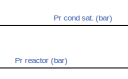
[diagram: root canvas - part 1/6, top center region]
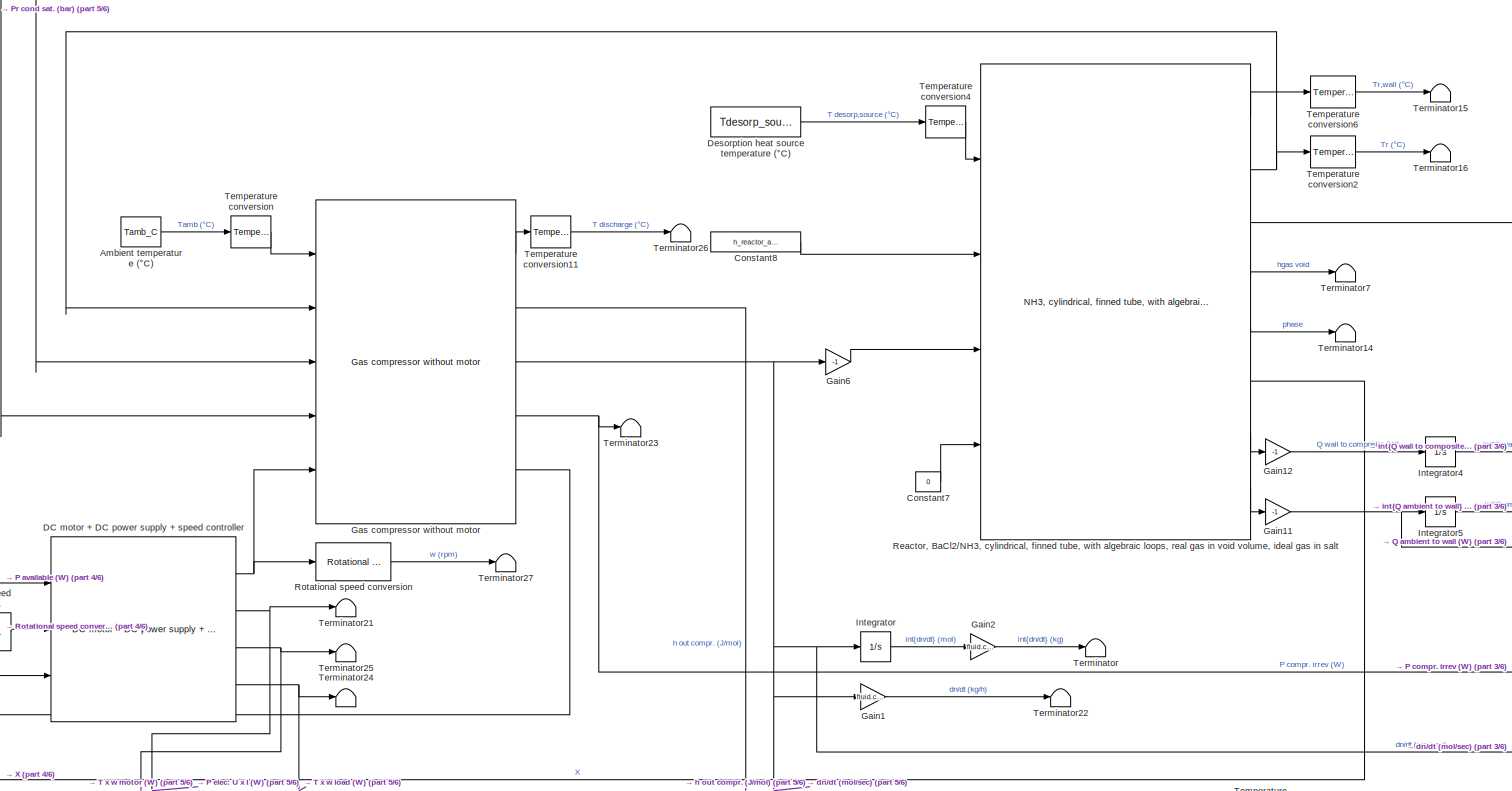
[diagram: root canvas - part 2/6, top center region]
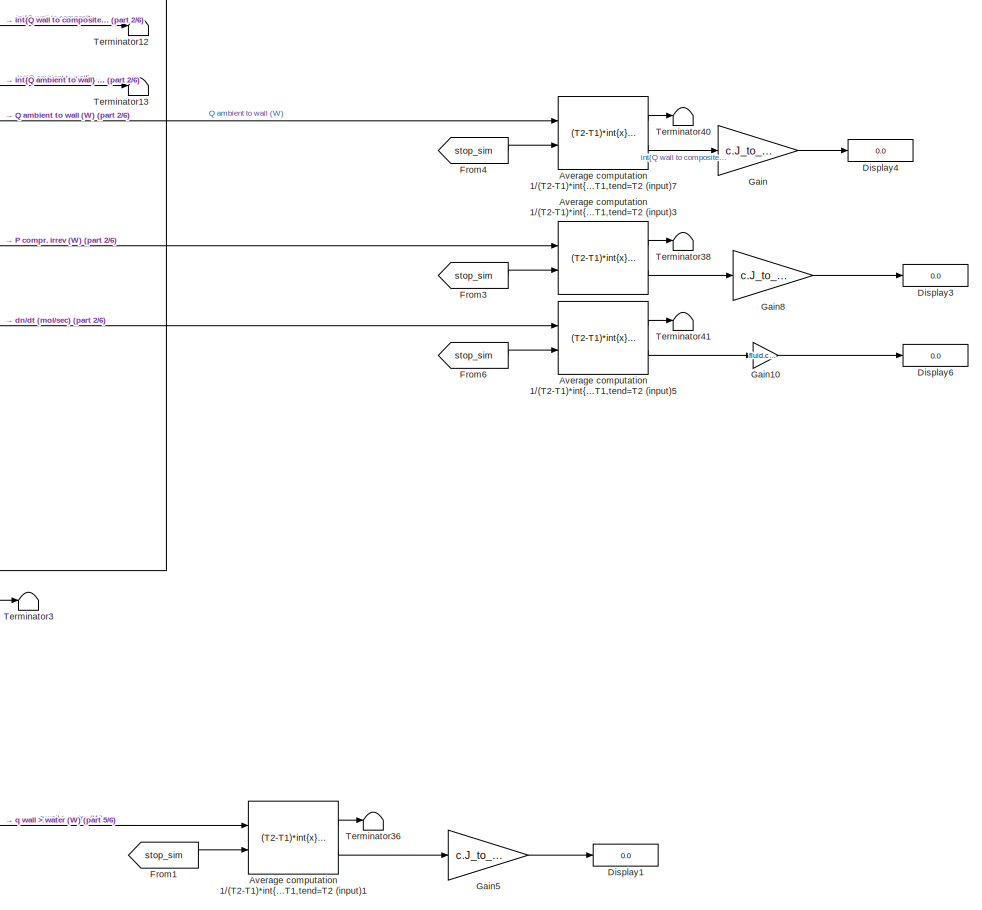
[diagram: root canvas - part 3/6, middle right region]
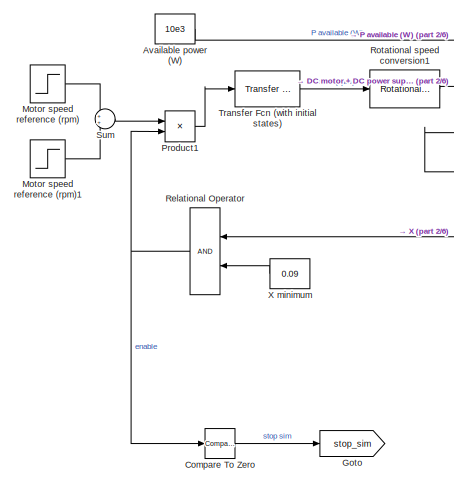
[diagram: root canvas - part 4/6, middle left region]
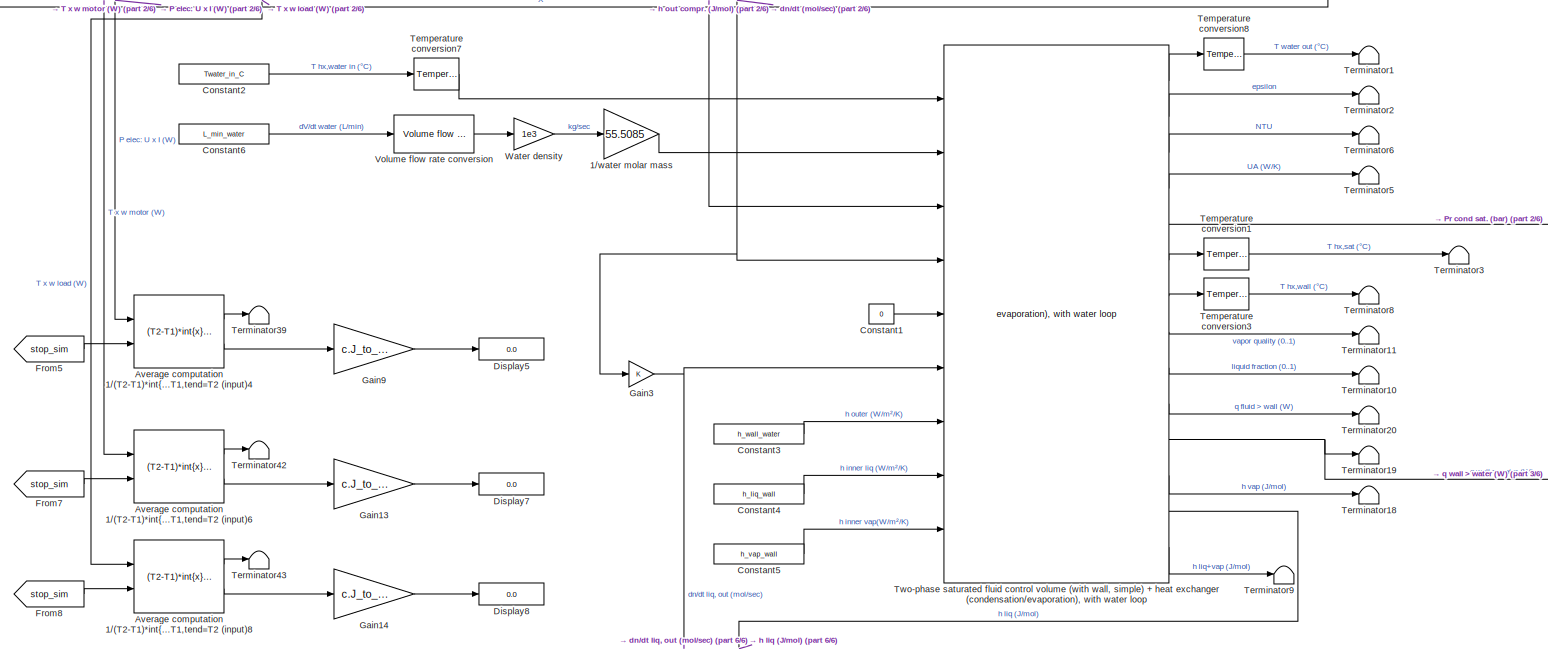
[diagram: root canvas - part 5/6, central region]
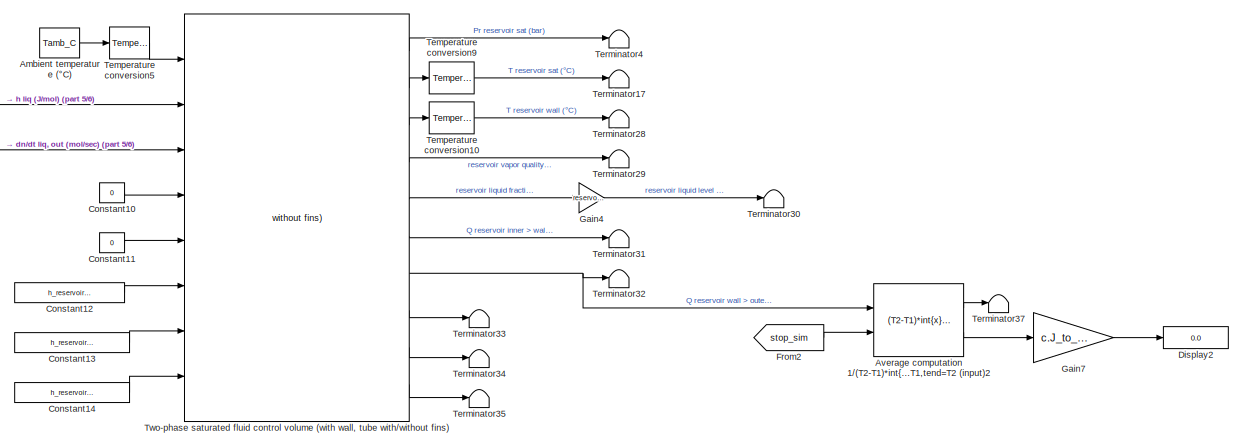
[diagram: root canvas - part 6/6, bottom center region]
MODEL slx_c5d3641f664c
KIND model
CONFIG AbsTol = auto
CONFIG EnableMultiTasking = off
CONFIG FixedStep = auto
CONFIG MaxStep = 0.1
CONFIG MinStep = auto
CONFIG RelTol = 5e-6
CONFIG SampleTimeConstraint = Unconstrained
CONFIG Solver = ode23tb
CONFIG SolverName = ode23tb
CONFIG StartTime = 0.0
CONFIG StopTime = tEndSimul
BLOCK [Gain] 1//water molar mass
  Gain = 55.5085
  OutDataTypeStr = Inherit: Inherit via internal rule
  ParamDataTypeStr = Inherit: Inherit via internal rule
  SaturateOnIntegerOverflow = off
BLOCK [Constant] Ambient temperature (°C)
  Value = Tamb_C
BLOCK [Constant] Ambient temperature (°C) 
  Value = Tamb_C
BLOCK [Constant] Available power (W)
  Value = 10e3
BLOCK [Reference] Average computation 1//(T2-T1)*int{x}|t0=T1,tend=T2 (input)1  REF=thermochemical/Utils/Average computation  (lib defined in slx_f9e0643dc704)
1//(T2-T1)*int{x}|t0=T1,tend=T2 (input)
  Ports = [2, 2]
  SourceBlock = thermochemical/Utils/Average computation\n1//(T2-T1)*int{x}|t0=T1,tend=T2 (input)
  SourceProductName = @ Thermochemical
BLOCK [Reference] Average computation 1//(T2-T1)*int{x}|t0=T1,tend=T2 (input)2  REF=thermochemical/Utils/Average computation  (lib defined in slx_f9e0643dc704)
1//(T2-T1)*int{x}|t0=T1,tend=T2 (input)
  Ports = [2, 2]
  SourceBlock = thermochemical/Utils/Average computation\n1//(T2-T1)*int{x}|t0=T1,tend=T2 (input)
  SourceProductName = @ Thermochemical
BLOCK [Reference] Average computation 1//(T2-T1)*int{x}|t0=T1,tend=T2 (input)3  REF=thermochemical/Utils/Average computation  (lib defined in slx_f9e0643dc704)
1//(T2-T1)*int{x}|t0=T1,tend=T2 (input)
  Ports = [2, 2]
  SourceBlock = thermochemical/Utils/Average computation\n1//(T2-T1)*int{x}|t0=T1,tend=T2 (input)
  SourceProductName = @ Thermochemical
BLOCK [Reference] Average computation 1//(T2-T1)*int{x}|t0=T1,tend=T2 (input)4  REF=thermochemical/Utils/Average computation  (lib defined in slx_f9e0643dc704)
1//(T2-T1)*int{x}|t0=T1,tend=T2 (input)
  Ports = [2, 2]
  SourceBlock = thermochemical/Utils/Average computation\n1//(T2-T1)*int{x}|t0=T1,tend=T2 (input)
  SourceProductName = @ Thermochemical
BLOCK [Reference] Average computation 1//(T2-T1)*int{x}|t0=T1,tend=T2 (input)5  REF=thermochemical/Utils/Average computation  (lib defined in slx_f9e0643dc704)
1//(T2-T1)*int{x}|t0=T1,tend=T2 (input)
  Ports = [2, 2]
  SourceBlock = thermochemical/Utils/Average computation\n1//(T2-T1)*int{x}|t0=T1,tend=T2 (input)
  SourceProductName = @ Thermochemical
BLOCK [Reference] Average computation 1//(T2-T1)*int{x}|t0=T1,tend=T2 (input)6  REF=thermochemical/Utils/Average computation  (lib defined in slx_f9e0643dc704)
1//(T2-T1)*int{x}|t0=T1,tend=T2 (input)
  Ports = [2, 2]
  SourceBlock = thermochemical/Utils/Average computation\n1//(T2-T1)*int{x}|t0=T1,tend=T2 (input)
  SourceProductName = @ Thermochemical
BLOCK [Reference] Average computation 1//(T2-T1)*int{x}|t0=T1,tend=T2 (input)7  REF=thermochemical/Utils/Average computation  (lib defined in slx_f9e0643dc704)
1//(T2-T1)*int{x}|t0=T1,tend=T2 (input)
  Ports = [2, 2]
  SourceBlock = thermochemical/Utils/Average computation\n1//(T2-T1)*int{x}|t0=T1,tend=T2 (input)
  SourceProductName = @ Thermochemical
BLOCK [Reference] Average computation 1//(T2-T1)*int{x}|t0=T1,tend=T2 (input)8  REF=thermochemical/Utils/Average computation  (lib defined in slx_f9e0643dc704)
1//(T2-T1)*int{x}|t0=T1,tend=T2 (input)
  Ports = [2, 2]
  SourceBlock = thermochemical/Utils/Average computation\n1//(T2-T1)*int{x}|t0=T1,tend=T2 (input)
  SourceProductName = @ Thermochemical
BLOCK [Reference] Compare To Zero  REF=simulink/Logic and Bit
Operations/Compare
To Zero
  Ports = [1, 1]
  SourceBlock = simulink/Logic and Bit\nOperations/Compare\nTo Zero
  SourceProductBaseCode = SL
  SourceProductName = Simulink
  SourceType = Compare To Zero
BLOCK [Constant] Constant1
  Value = 0
BLOCK [Constant] Constant10
  Value = 0
BLOCK [Constant] Constant11
  Value = 0
BLOCK [Constant] Constant12
  Value = h_reservoir_outer
BLOCK [Constant] Constant13
  Value = h_reservoir_inner_liq
BLOCK [Constant] Constant14
  Value = h_reservoir_inner_vap
BLOCK [Constant] Constant2
  Value = Twater_in_C
BLOCK [Constant] Constant3
  Value = h_wall_water
BLOCK [Constant] Constant4
  Value = h_liq_wall
BLOCK [Constant] Constant5
  Value = h_vap_wall
BLOCK [Constant] Constant6
  Value = L_min_water
BLOCK [Constant] Constant7
  Value = 0
BLOCK [Constant] Constant8
  Value = h_reactor_air
BLOCK [Reference] DC motor + DC power supply + speed controller  REF=thermochemical/Motors/DC motor + DC power supply +   (lib defined in slx_f9e0643dc704)
speed controller
  Ports = [3, 4]
  SourceBlock = thermochemical/Motors/DC motor + DC power supply + \nspeed controller
  SourceProductName = @ Thermochemical
  SourceType = dc_motor_plus_speed_controller_plus_DC_power_source
BLOCK [Constant] Desorption heat source temperature (°C)
  Value = Tdesorp_source_C
BLOCK [Display] Display1
  Decimation = 1
  Ports = [1]
BLOCK [Display] Display2
  Decimation = 1
  Ports = [1]
BLOCK [Display] Display3
  Decimation = 1
  Ports = [1]
BLOCK [Display] Display4
  Decimation = 1
  Ports = [1]
BLOCK [Display] Display5
  Decimation = 1
  Ports = [1]
BLOCK [Display] Display6
  Decimation = 1
  Ports = [1]
BLOCK [Display] Display7
  Decimation = 1
  Ports = [1]
BLOCK [Display] Display8
  Decimation = 1
  Ports = [1]
BLOCK [From] From1
  GotoTag = stop_sim
BLOCK [From] From2
  GotoTag = stop_sim
BLOCK [From] From3
  GotoTag = stop_sim
BLOCK [From] From4
  GotoTag = stop_sim
BLOCK [From] From5
  GotoTag = stop_sim
BLOCK [From] From6
  GotoTag = stop_sim
BLOCK [From] From7
  GotoTag = stop_sim
BLOCK [From] From8
  GotoTag = stop_sim
BLOCK [Gain] Gain
  Gain = c.J_to_kWh
  OutDataTypeStr = Inherit: Inherit via internal rule
  ParamDataTypeStr = Inherit: Inherit via internal rule
  SaturateOnIntegerOverflow = off
BLOCK [Gain] Gain1
  Gain = fluid.constants.Molar_mass*3600
  OutDataTypeStr = Inherit: Inherit via internal rule
  ParamDataTypeStr = Inherit: Inherit via internal rule
  SaturateOnIntegerOverflow = off
BLOCK [Gain] Gain10
  Gain = fluid.constants.Molar_mass
  OutDataTypeStr = Inherit: Inherit via internal rule
  ParamDataTypeStr = Inherit: Inherit via internal rule
  SaturateOnIntegerOverflow = off
BLOCK [Gain] Gain11
  Gain = -1
  OutDataTypeStr = Inherit: Inherit via internal rule
  ParamDataTypeStr = Inherit: Inherit via internal rule
  SaturateOnIntegerOverflow = off
BLOCK [Gain] Gain12
  Gain = -1
  OutDataTypeStr = Inherit: Inherit via internal rule
  ParamDataTypeStr = Inherit: Inherit via internal rule
  SaturateOnIntegerOverflow = off
BLOCK [Gain] Gain13
  Gain = c.J_to_kWh
  OutDataTypeStr = Inherit: Inherit via internal rule
  ParamDataTypeStr = Inherit: Inherit via internal rule
  SaturateOnIntegerOverflow = off
BLOCK [Gain] Gain14
  Gain = c.J_to_kWh
  OutDataTypeStr = Inherit: Inherit via internal rule
  ParamDataTypeStr = Inherit: Inherit via internal rule
  SaturateOnIntegerOverflow = off
BLOCK [Gain] Gain2
  Gain = fluid.constants.Molar_mass
  OutDataTypeStr = Inherit: Inherit via internal rule
  ParamDataTypeStr = Inherit: Inherit via internal rule
  SaturateOnIntegerOverflow = off
BLOCK [Gain] Gain3
  OutDataTypeStr = Inherit: Inherit via internal rule
  ParamDataTypeStr = Inherit: Inherit via internal rule
  SaturateOnIntegerOverflow = off
BLOCK [Gain] Gain4
  Gain = reservoir_L
  OutDataTypeStr = Inherit: Inherit via internal rule
  ParamDataTypeStr = Inherit: Inherit via internal rule
  SaturateOnIntegerOverflow = off
BLOCK [Gain] Gain5
  Gain = c.J_to_kWh
  OutDataTypeStr = Inherit: Inherit via internal rule
  ParamDataTypeStr = Inherit: Inherit via internal rule
  SaturateOnIntegerOverflow = off
BLOCK [Gain] Gain6
  Gain = -1
  OutDataTypeStr = Inherit: Inherit via internal rule
  ParamDataTypeStr = Inherit: Inherit via internal rule
  SaturateOnIntegerOverflow = off
BLOCK [Gain] Gain7
  Gain = c.J_to_kWh
  OutDataTypeStr = Inherit: Inherit via internal rule
  ParamDataTypeStr = Inherit: Inherit via internal rule
  SaturateOnIntegerOverflow = off
BLOCK [Gain] Gain8
  Gain = c.J_to_kWh
  OutDataTypeStr = Inherit: Inherit via internal rule
  ParamDataTypeStr = Inherit: Inherit via internal rule
  SaturateOnIntegerOverflow = off
BLOCK [Gain] Gain9
  Gain = c.J_to_kWh
  OutDataTypeStr = Inherit: Inherit via internal rule
  ParamDataTypeStr = Inherit: Inherit via internal rule
  SaturateOnIntegerOverflow = off
BLOCK [Reference] Gas compressor without motor  REF=thermochemical/Compression/Gas compressor without motor  (lib defined in slx_f9e0643dc704)
  Ports = [5, 5]
  SourceBlock = thermochemical/Compression/Gas compressor without motor
  SourceProductName = @ Thermochemical
BLOCK [Goto] Goto
  GotoTag = stop_sim
BLOCK [Integrator] Integrator
  Ports = [1, 1]
BLOCK [Integrator] Integrator4
  Ports = [1, 1]
BLOCK [Integrator] Integrator5
  Ports = [1, 1]
BLOCK [Step] Motor speed reference (rpm)
  After = rpm_ref_01
  Before = rpm_ref_init
  SampleTime = 0
  Time = rpm_ref_01_time
BLOCK [Step] Motor speed reference (rpm)1
  After = rpm_ref_02-rpm_ref_01
  SampleTime = 0
  Time = rpm_ref_02_time
BLOCK [Product] Product1
  InputSameDT = off
  OutDataTypeStr = Inherit: Inherit via internal rule
  Ports = [2, 1]
  RndMeth = Floor
  SaturateOnIntegerOverflow = off
BLOCK [Reference] Reactor, BaCl2//NH3, cylindrical, finned tube, with algebraic loops, real gas in void volume, ideal gas in salt  REF=thermochemical/Reactors/Reactor, BaCl2//NH3, with algebraic loops,  (lib defined in slx_f9e0643dc704)
real gas in void volume, ideal gas in salt/Reactor, BaCl2//NH3, cylindrical, finned tube, with algebraic loops,
real gas in void volume, ideal gas in salt
  Ports = [4, 8]
  SourceBlock = thermochemical/Reactors/Reactor, BaCl2//NH3, with algebraic loops,\nreal gas in void volume, ideal gas in salt/Reactor, BaCl2//NH3, cylindrical, finned tube, with algebraic loops,\nreal gas in void volume, ideal gas in salt
  SourceProductName = @ Thermochemical
  SourceType = SubSystem
BLOCK [RelationalOperator] Relational Operator
  InputSameDT = off
  OutDataTypeStr = boolean
  Ports = [2, 1]
  RndMeth = Simplest
BLOCK [Reference] Rotational speed conversion  REF=thermochemical/Conversions/Rotational speed  (lib defined in slx_f9e0643dc704)
conversion
  Ports = [1, 1]
  SourceBlock = thermochemical/Conversions/Rotational speed\nconversion
  SourceProductName = @ Thermochemical
  SourceType = convert_pressure
BLOCK [Reference] Rotational speed conversion1  REF=thermochemical/Conversions/Rotational speed  (lib defined in slx_f9e0643dc704)
conversion
  Ports = [1, 1]
  SourceBlock = thermochemical/Conversions/Rotational speed\nconversion
  SourceProductName = @ Thermochemical
  SourceType = convert_pressure
BLOCK [Sum] Sum
  IconShape = round
  InputSameDT = off
  OutDataTypeStr = Inherit: Inherit via internal rule
  Ports = [2, 1]
  SaturateOnIntegerOverflow = off
BLOCK [Reference] Temperature conversion  REF=thermochemical/Conversions/Temperature  (lib defined in slx_f9e0643dc704)
conversion
  Ports = [1, 1]
  SourceBlock = thermochemical/Conversions/Temperature\nconversion
  SourceProductName = @ Thermochemical
  SourceType = convert_temperature
BLOCK [Reference] Temperature conversion1  REF=thermochemical/Conversions/Temperature  (lib defined in slx_f9e0643dc704)
conversion
  Ports = [1, 1]
  SourceBlock = thermochemical/Conversions/Temperature\nconversion
  SourceProductName = @ Thermochemical
  SourceType = convert_temperature
BLOCK [Reference] Temperature conversion10  REF=thermochemical/Conversions/Temperature  (lib defined in slx_f9e0643dc704)
conversion
  Ports = [1, 1]
  SourceBlock = thermochemical/Conversions/Temperature\nconversion
  SourceProductName = @ Thermochemical
  SourceType = convert_temperature
BLOCK [Reference] Temperature conversion11  REF=thermochemical/Conversions/Temperature  (lib defined in slx_f9e0643dc704)
conversion
  Ports = [1, 1]
  SourceBlock = thermochemical/Conversions/Temperature\nconversion
  SourceProductName = @ Thermochemical
  SourceType = convert_temperature
BLOCK [Reference] Temperature conversion2  REF=thermochemical/Conversions/Temperature  (lib defined in slx_f9e0643dc704)
conversion
  Ports = [1, 1]
  SourceBlock = thermochemical/Conversions/Temperature\nconversion
  SourceProductName = @ Thermochemical
  SourceType = convert_temperature
BLOCK [Reference] Temperature conversion3  REF=thermochemical/Conversions/Temperature  (lib defined in slx_f9e0643dc704)
conversion
  Ports = [1, 1]
  SourceBlock = thermochemical/Conversions/Temperature\nconversion
  SourceProductName = @ Thermochemical
  SourceType = convert_temperature
BLOCK [Reference] Temperature conversion4  REF=thermochemical/Conversions/Temperature  (lib defined in slx_f9e0643dc704)
conversion
  Ports = [1, 1]
  SourceBlock = thermochemical/Conversions/Temperature\nconversion
  SourceProductName = @ Thermochemical
  SourceType = convert_temperature
BLOCK [Reference] Temperature conversion5  REF=thermochemical/Conversions/Temperature  (lib defined in slx_f9e0643dc704)
conversion
  Ports = [1, 1]
  SourceBlock = thermochemical/Conversions/Temperature\nconversion
  SourceProductName = @ Thermochemical
  SourceType = convert_temperature
BLOCK [Reference] Temperature conversion6  REF=thermochemical/Conversions/Temperature  (lib defined in slx_f9e0643dc704)
conversion
  Ports = [1, 1]
  SourceBlock = thermochemical/Conversions/Temperature\nconversion
  SourceProductName = @ Thermochemical
  SourceType = convert_temperature
BLOCK [Reference] Temperature conversion7  REF=thermochemical/Conversions/Temperature  (lib defined in slx_f9e0643dc704)
conversion
  Ports = [1, 1]
  SourceBlock = thermochemical/Conversions/Temperature\nconversion
  SourceProductName = @ Thermochemical
  SourceType = convert_temperature
BLOCK [Reference] Temperature conversion8  REF=thermochemical/Conversions/Temperature  (lib defined in slx_f9e0643dc704)
conversion
  Ports = [1, 1]
  SourceBlock = thermochemical/Conversions/Temperature\nconversion
  SourceProductName = @ Thermochemical
  SourceType = convert_temperature
BLOCK [Reference] Temperature conversion9  REF=thermochemical/Conversions/Temperature  (lib defined in slx_f9e0643dc704)
conversion
  Ports = [1, 1]
  SourceBlock = thermochemical/Conversions/Temperature\nconversion
  SourceProductName = @ Thermochemical
  SourceType = convert_temperature
BLOCK [Terminator] Terminator
BLOCK [Terminator] Terminator1
BLOCK [Terminator] Terminator10
BLOCK [Terminator] Terminator11
BLOCK [Terminator] Terminator12
BLOCK [Terminator] Terminator13
BLOCK [Terminator] Terminator14
BLOCK [Terminator] Terminator15
BLOCK [Terminator] Terminator16
BLOCK [Terminator] Terminator17
BLOCK [Terminator] Terminator18
BLOCK [Terminator] Terminator19
BLOCK [Terminator] Terminator2
BLOCK [Terminator] Terminator20
BLOCK [Terminator] Terminator21
BLOCK [Terminator] Terminator22
BLOCK [Terminator] Terminator23
BLOCK [Terminator] Terminator24
BLOCK [Terminator] Terminator25
BLOCK [Terminator] Terminator26
BLOCK [Terminator] Terminator27
BLOCK [Terminator] Terminator28
BLOCK [Terminator] Terminator29
BLOCK [Terminator] Terminator3
BLOCK [Terminator] Terminator30
BLOCK [Terminator] Terminator31
BLOCK [Terminator] Terminator32
BLOCK [Terminator] Terminator33
BLOCK [Terminator] Terminator34
BLOCK [Terminator] Terminator35
BLOCK [Terminator] Terminator36
BLOCK [Terminator] Terminator37
BLOCK [Terminator] Terminator38
BLOCK [Terminator] Terminator39
BLOCK [Terminator] Terminator4
BLOCK [Terminator] Terminator40
BLOCK [Terminator] Terminator41
BLOCK [Terminator] Terminator42
BLOCK [Terminator] Terminator43
BLOCK [Terminator] Terminator5
BLOCK [Terminator] Terminator6
BLOCK [Terminator] Terminator7
BLOCK [Terminator] Terminator8
BLOCK [Terminator] Terminator9
BLOCK [Reference] Transfer Fcn (with initial states)  REF=simulink_extras/Additional
Linear/Transfer Fcn
(with initial states)
  Ports = [1, 1]
  SourceBlock = simulink_extras/Additional\nLinear/Transfer Fcn\n(with initial states)
  SourceProductBaseCode = SL
  SourceProductName = Simulink
  SourceType = Transfer Function with Initial States
BLOCK [Reference] Two-phase saturated fluid control volume (with wall, simple) + heat exchanger (condensation//evaporation), with water loop  REF=thermochemical/Control volumes/Two-phase saturated fluid control volume (with wall, simple) +  (lib defined in slx_f9e0643dc704)
heat exchanger (condensation//evaporation), with water loop
  Ports = [9, 14]
  SourceBlock = thermochemical/Control volumes/Two-phase saturated fluid control volume (with wall, simple) +\nheat exchanger (condensation//evaporation), with water loop
  SourceProductName = @ Thermochemical
  SourceType = SubSystem
BLOCK [Reference] Two-phase saturated fluid control volume (with wall, tube with//without fins)  REF=thermochemical/Control volumes/Two-phase saturated fluid  (lib defined in slx_f9e0643dc704)
control volume (with wall, tube with//without fins)
  Ports = [8, 10]
  SourceBlock = thermochemical/Control volumes/Two-phase saturated fluid\ncontrol volume (with wall, tube with//without fins)
  SourceProductName = @ Thermochemical
  SourceType = SubSystem
BLOCK [Reference] Volume flow rate conversion  REF=thermochemical/Conversions/Volume flow rate  (lib defined in slx_f9e0643dc704)
conversion
  Ports = [1, 1]
  SourceBlock = thermochemical/Conversions/Volume flow rate\nconversion
  SourceProductName = @ Thermochemical
  SourceType = convert_volume_flow
BLOCK [Gain] Water density
  Gain = 1e3
  OutDataTypeStr = Inherit: Inherit via internal rule
  ParamDataTypeStr = Inherit: Inherit via internal rule
  SaturateOnIntegerOverflow = off
BLOCK [Constant] X minimum
  Value = 0.09
LINE 1//water molar mass:1 -> Two-phase saturated fluid control volume (with wall, simple) + heat exchanger (condensation//evaporation), with water loop:2
LINE Ambient temperature (°C) :1 -> Temperature conversion5:1
LINE Ambient temperature (°C):1 -> Temperature conversion:1
LINE Available power (W):1 -> DC motor + DC power supply + speed controller:1
LINE Average computation 1//(T2-T1)*int{x}|t0=T1,tend=T2 (input)1:1 -> Terminator36:1
LINE Average computation 1//(T2-T1)*int{x}|t0=T1,tend=T2 (input)1:2 -> Gain5:1
LINE Average computation 1//(T2-T1)*int{x}|t0=T1,tend=T2 (input)2:1 -> Terminator37:1
LINE Average computation 1//(T2-T1)*int{x}|t0=T1,tend=T2 (input)2:2 -> Gain7:1
LINE Average computation 1//(T2-T1)*int{x}|t0=T1,tend=T2 (input)3:1 -> Terminator38:1
LINE Average computation 1//(T2-T1)*int{x}|t0=T1,tend=T2 (input)3:2 -> Gain8:1
LINE Average computation 1//(T2-T1)*int{x}|t0=T1,tend=T2 (input)4:1 -> Terminator39:1
LINE Average computation 1//(T2-T1)*int{x}|t0=T1,tend=T2 (input)4:2 -> Gain9:1
LINE Average computation 1//(T2-T1)*int{x}|t0=T1,tend=T2 (input)5:1 -> Terminator41:1
LINE Average computation 1//(T2-T1)*int{x}|t0=T1,tend=T2 (input)5:2 -> Gain10:1
LINE Average computation 1//(T2-T1)*int{x}|t0=T1,tend=T2 (input)6:1 -> Terminator42:1
LINE Average computation 1//(T2-T1)*int{x}|t0=T1,tend=T2 (input)6:2 -> Gain13:1
LINE Average computation 1//(T2-T1)*int{x}|t0=T1,tend=T2 (input)7:1 -> Terminator40:1
LINE Average computation 1//(T2-T1)*int{x}|t0=T1,tend=T2 (input)7:2 -> Gain:1
LINE Average computation 1//(T2-T1)*int{x}|t0=T1,tend=T2 (input)8:1 -> Terminator43:1
LINE Average computation 1//(T2-T1)*int{x}|t0=T1,tend=T2 (input)8:2 -> Gain14:1
LINE Compare To Zero:1 -> Goto:1
LINE Constant10:1 -> Two-phase saturated fluid control volume (with wall, tube with//without fins):4
LINE Constant11:1 -> Two-phase saturated fluid control volume (with wall, tube with//without fins):5
LINE Constant12:1 -> Two-phase saturated fluid control volume (with wall, tube with//without fins):6
LINE Constant13:1 -> Two-phase saturated fluid control volume (with wall, tube with//without fins):7
LINE Constant14:1 -> Two-phase saturated fluid control volume (with wall, tube with//without fins):8
LINE Constant1:1 -> Two-phase saturated fluid control volume (with wall, simple) + heat exchanger (condensation//evaporation), with water loop:5
LINE Constant2:1 -> Temperature conversion7:1
LINE Constant3:1 -> Two-phase saturated fluid control volume (with wall, simple) + heat exchanger (condensation//evaporation), with water loop:7
LINE Constant4:1 -> Two-phase saturated fluid control volume (with wall, simple) + heat exchanger (condensation//evaporation), with water loop:8
LINE Constant5:1 -> Two-phase saturated fluid control volume (with wall, simple) + heat exchanger (condensation//evaporation), with water loop:9
LINE Constant6:1 -> Volume flow rate conversion:1
LINE Constant7:1 -> Reactor, BaCl2//NH3, cylindrical, finned tube, with algebraic loops, real gas in void volume, ideal gas in salt:4
LINE Constant8:1 -> Reactor, BaCl2//NH3, cylindrical, finned tube, with algebraic loops, real gas in void volume, ideal gas in salt:2
NET DC motor + DC power supply + speed controller:1 -> Gas compressor without motor:5, Rotational speed conversion:1
NET DC motor + DC power supply + speed controller:2 -> Average computation 1//(T2-T1)*int{x}|t0=T1,tend=T2 (input)4:1, Terminator21:1
NET DC motor + DC power supply + speed controller:3 -> Average computation 1//(T2-T1)*int{x}|t0=T1,tend=T2 (input)6:1, Terminator25:1
NET DC motor + DC power supply + speed controller:4 -> Average computation 1//(T2-T1)*int{x}|t0=T1,tend=T2 (input)8:1, Terminator24:1
LINE Desorption heat source temperature (°C):1 -> Temperature conversion4:1
LINE From1:1 -> Average computation 1//(T2-T1)*int{x}|t0=T1,tend=T2 (input)1:2
LINE From2:1 -> Average computation 1//(T2-T1)*int{x}|t0=T1,tend=T2 (input)2:2
LINE From3:1 -> Average computation 1//(T2-T1)*int{x}|t0=T1,tend=T2 (input)3:2
LINE From4:1 -> Average computation 1//(T2-T1)*int{x}|t0=T1,tend=T2 (input)7:2
LINE From5:1 -> Average computation 1//(T2-T1)*int{x}|t0=T1,tend=T2 (input)4:2
LINE From6:1 -> Average computation 1//(T2-T1)*int{x}|t0=T1,tend=T2 (input)5:2
LINE From7:1 -> Average computation 1//(T2-T1)*int{x}|t0=T1,tend=T2 (input)6:2
LINE From8:1 -> Average computation 1//(T2-T1)*int{x}|t0=T1,tend=T2 (input)8:2
LINE Gain10:1 -> Display6:1
NET Gain11:1 -> Average computation 1//(T2-T1)*int{x}|t0=T1,tend=T2 (input)7:1, Integrator5:1
LINE Gain12:1 -> Integrator4:1
LINE Gain13:1 -> Display7:1
LINE Gain14:1 -> Display8:1
LINE Gain1:1 -> Terminator22:1
LINE Gain2:1 -> Terminator:1
NET Gain3:1 -> Two-phase saturated fluid control volume (with wall, simple) + heat exchanger (condensation//evaporation), with water loop:6, Two-phase saturated fluid control volume (with wall, tube with//without fins):3
LINE Gain4:1 -> Terminator30:1
LINE Gain5:1 -> Display1:1
LINE Gain6:1 -> Reactor, BaCl2//NH3, cylindrical, finned tube, with algebraic loops, real gas in void volume, ideal gas in salt:3
LINE Gain7:1 -> Display2:1
LINE Gain8:1 -> Display3:1
LINE Gain9:1 -> Display5:1
LINE Gain:1 -> Display4:1
LINE Gas compressor without motor:1 -> Temperature conversion11:1
LINE Gas compressor without motor:2 -> Two-phase saturated fluid control volume (with wall, simple) + heat exchanger (condensation//evaporation), with water loop:3
NET Gas compressor without motor:3 -> Average computation 1//(T2-T1)*int{x}|t0=T1,tend=T2 (input)5:1, Gain1:1, Gain3:1, Gain6:1, Integrator:1, Two-phase saturated fluid control volume (with wall, simple) + heat exchanger (condensation//evaporation), with water loop:4
NET Gas compressor without motor:4 -> Average computation 1//(T2-T1)*int{x}|t0=T1,tend=T2 (input)3:1, Terminator23:1
LINE Gas compressor without motor:5 -> DC motor + DC power supply + speed controller:3
LINE Integrator4:1 -> Terminator12:1
LINE Integrator5:1 -> Terminator13:1
LINE Integrator:1 -> Gain2:1
LINE Motor speed reference (rpm)1:1 -> Sum:2
LINE Motor speed reference (rpm):1 -> Sum:1
LINE Product1:1 -> Transfer Fcn (with initial states):1
LINE Reactor, BaCl2//NH3, cylindrical, finned tube, with algebraic loops, real gas in void volume, ideal gas in salt:1 -> Temperature conversion6:1
NET Reactor, BaCl2//NH3, cylindrical, finned tube, with algebraic loops, real gas in void volume, ideal gas in salt:2 -> Gas compressor without motor:2, Temperature conversion2:1
LINE Reactor, BaCl2//NH3, cylindrical, finned tube, with algebraic loops, real gas in void volume, ideal gas in salt:3 -> Gas compressor without motor:3
LINE Reactor, BaCl2//NH3, cylindrical, finned tube, with algebraic loops, real gas in void volume, ideal gas in salt:4 -> Terminator7:1
LINE Reactor, BaCl2//NH3, cylindrical, finned tube, with algebraic loops, real gas in void volume, ideal gas in salt:5 -> Terminator14:1
LINE Reactor, BaCl2//NH3, cylindrical, finned tube, with algebraic loops, real gas in void volume, ideal gas in salt:6 -> Relational Operator:1
LINE Reactor, BaCl2//NH3, cylindrical, finned tube, with algebraic loops, real gas in void volume, ideal gas in salt:7 -> Gain12:1
LINE Reactor, BaCl2//NH3, cylindrical, finned tube, with algebraic loops, real gas in void volume, ideal gas in salt:8 -> Gain11:1
NET Relational Operator:1 -> Compare To Zero:1, Product1:2
LINE Rotational speed conversion1:1 -> DC motor + DC power supply + speed controller:2
LINE Rotational speed conversion:1 -> Terminator27:1
LINE Sum:1 -> Product1:1
LINE Temperature conversion10:1 -> Terminator28:1
LINE Temperature conversion11:1 -> Terminator26:1
LINE Temperature conversion1:1 -> Terminator3:1
LINE Temperature conversion2:1 -> Terminator16:1
LINE Temperature conversion3:1 -> Terminator8:1
LINE Temperature conversion4:1 -> Reactor, BaCl2//NH3, cylindrical, finned tube, with algebraic loops, real gas in void volume, ideal gas in salt:1
LINE Temperature conversion5:1 -> Two-phase saturated fluid control volume (with wall, tube with//without fins):1
LINE Temperature conversion6:1 -> Terminator15:1
LINE Temperature conversion7:1 -> Two-phase saturated fluid control volume (with wall, simple) + heat exchanger (condensation//evaporation), with water loop:1
LINE Temperature conversion8:1 -> Terminator1:1
LINE Temperature conversion9:1 -> Terminator17:1
LINE Temperature conversion:1 -> Gas compressor without motor:1
LINE Transfer Fcn (with initial states):1 -> Rotational speed conversion1:1
LINE Two-phase saturated fluid control volume (with wall, simple) + heat exchanger (condensation//evaporation), with water loop:1 -> Temperature conversion8:1
LINE Two-phase saturated fluid control volume (with wall, simple) + heat exchanger (condensation//evaporation), with water loop:10 -> Terminator20:1
NET Two-phase saturated fluid control volume (with wall, simple) + heat exchanger (condensation//evaporation), with water loop:11 -> Average computation 1//(T2-T1)*int{x}|t0=T1,tend=T2 (input)1:1, Terminator19:1
LINE Two-phase saturated fluid control volume (with wall, simple) + heat exchanger (condensation//evaporation), with water loop:12 -> Terminator18:1
LINE Two-phase saturated fluid control volume (with wall, simple) + heat exchanger (condensation//evaporation), with water loop:13 -> Two-phase saturated fluid control volume (with wall, tube with//without fins):2
LINE Two-phase saturated fluid control volume (with wall, simple) + heat exchanger (condensation//evaporation), with water loop:14 -> Terminator9:1
LINE Two-phase saturated fluid control volume (with wall, simple) + heat exchanger (condensation//evaporation), with water loop:2 -> Terminator2:1
LINE Two-phase saturated fluid control volume (with wall, simple) + heat exchanger (condensation//evaporation), with water loop:3 -> Terminator6:1
LINE Two-phase saturated fluid control volume (with wall, simple) + heat exchanger (condensation//evaporation), with water loop:4 -> Terminator5:1
LINE Two-phase saturated fluid control volume (with wall, simple) + heat exchanger (condensation//evaporation), with water loop:5 -> Gas compressor without motor:4
LINE Two-phase saturated fluid control volume (with wall, simple) + heat exchanger (condensation//evaporation), with water loop:6 -> Temperature conversion1:1
LINE Two-phase saturated fluid control volume (with wall, simple) + heat exchanger (condensation//evaporation), with water loop:7 -> Temperature conversion3:1
LINE Two-phase saturated fluid control volume (with wall, simple) + heat exchanger (condensation//evaporation), with water loop:8 -> Terminator11:1
LINE Two-phase saturated fluid control volume (with wall, simple) + heat exchanger (condensation//evaporation), with water loop:9 -> Terminator10:1
LINE Two-phase saturated fluid control volume (with wall, tube with//without fins):1 -> Terminator4:1
LINE Two-phase saturated fluid control volume (with wall, tube with//without fins):10 -> Terminator35:1
LINE Two-phase saturated fluid control volume (with wall, tube with//without fins):2 -> Temperature conversion9:1
LINE Two-phase saturated fluid control volume (with wall, tube with//without fins):3 -> Temperature conversion10:1
LINE Two-phase saturated fluid control volume (with wall, tube with//without fins):4 -> Terminator29:1
LINE Two-phase saturated fluid control volume (with wall, tube with//without fins):5 -> Gain4:1
LINE Two-phase saturated fluid control volume (with wall, tube with//without fins):6 -> Terminator31:1
NET Two-phase saturated fluid control volume (with wall, tube with//without fins):7 -> Average computation 1//(T2-T1)*int{x}|t0=T1,tend=T2 (input)2:1, Terminator32:1
LINE Two-phase saturated fluid control volume (with wall, tube with//without fins):8 -> Terminator33:1
LINE Two-phase saturated fluid control volume (with wall, tube with//without fins):9 -> Terminator34:1
LINE Volume flow rate conversion:1 -> Water density:1
LINE Water density:1 -> 1//water molar mass:1
LINE X minimum:1 -> Relational Operator:2
note: NET lines group one-source signal fan-out (src -> all destinations, sorted); 1:1 wires keep LINE
